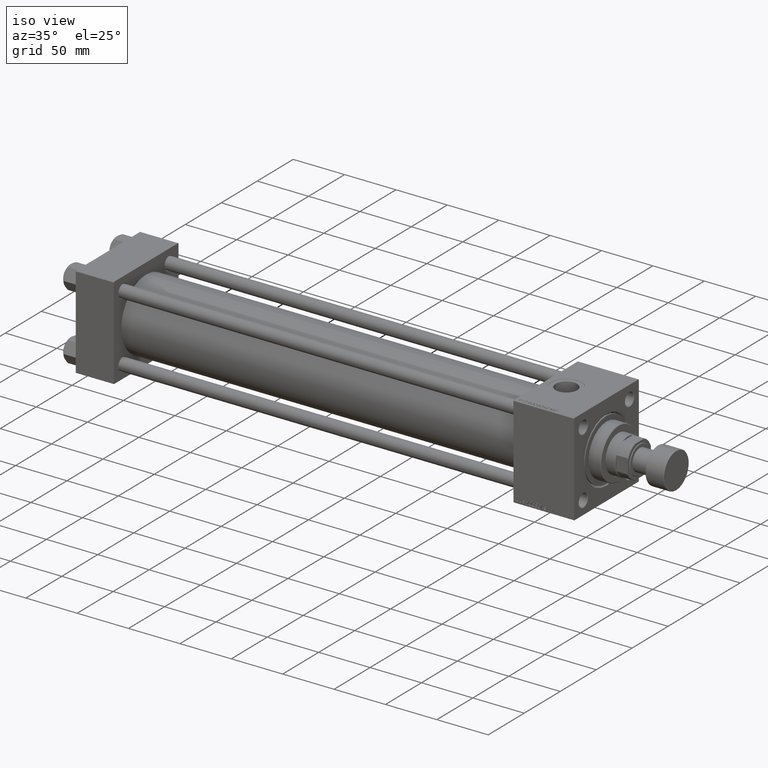
[diagram: clean part render]
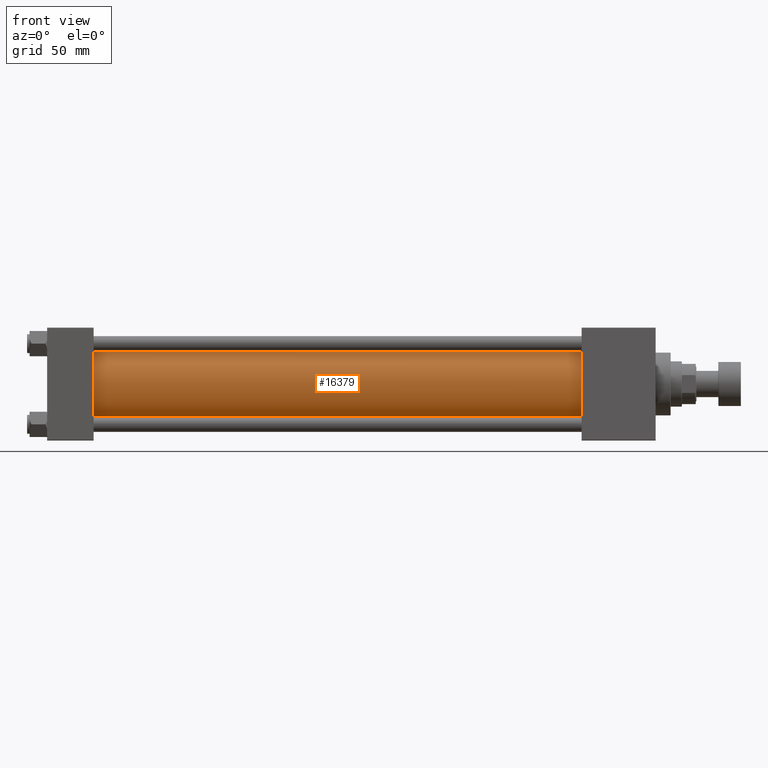
[diagram: tour spotlight — one face highlighted and labeled with its STEP entity id]
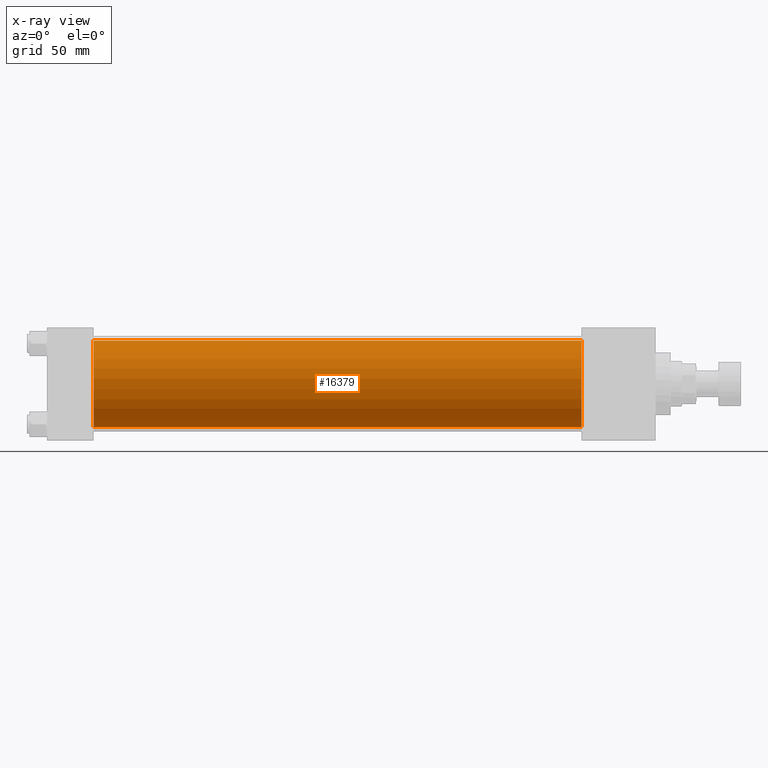
[diagram: x-ray of the same camera — body ghosted, this tour face saturated]
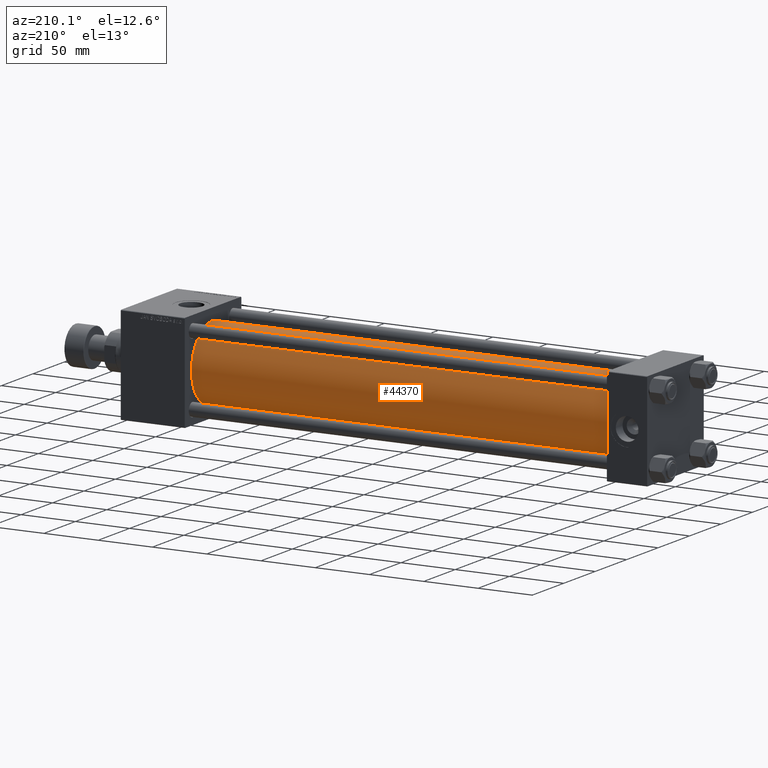
[diagram: tour spotlight — one face highlighted and labeled with its STEP entity id]
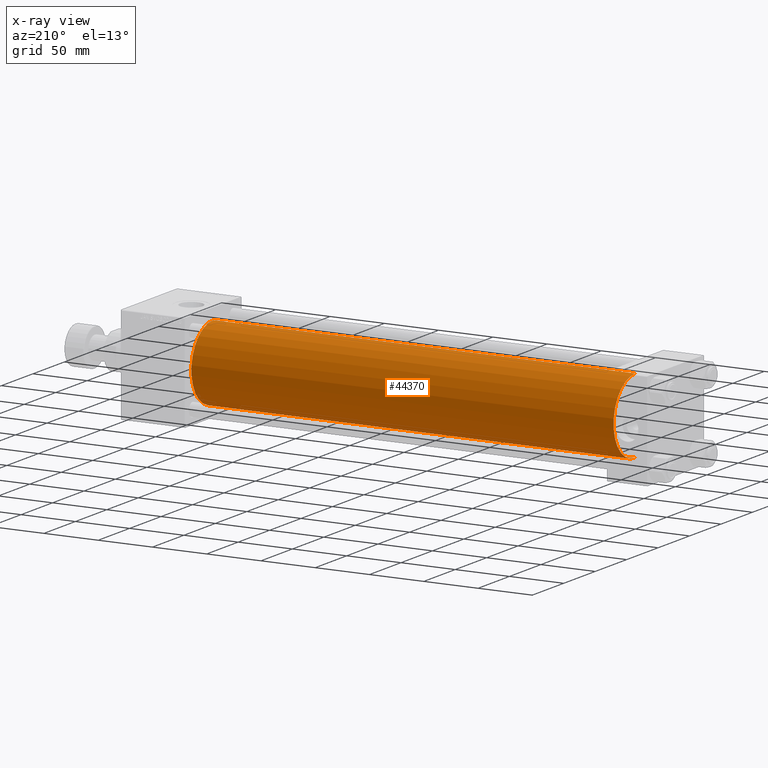
[diagram: x-ray of the same camera — body ghosted, this tour face saturated]
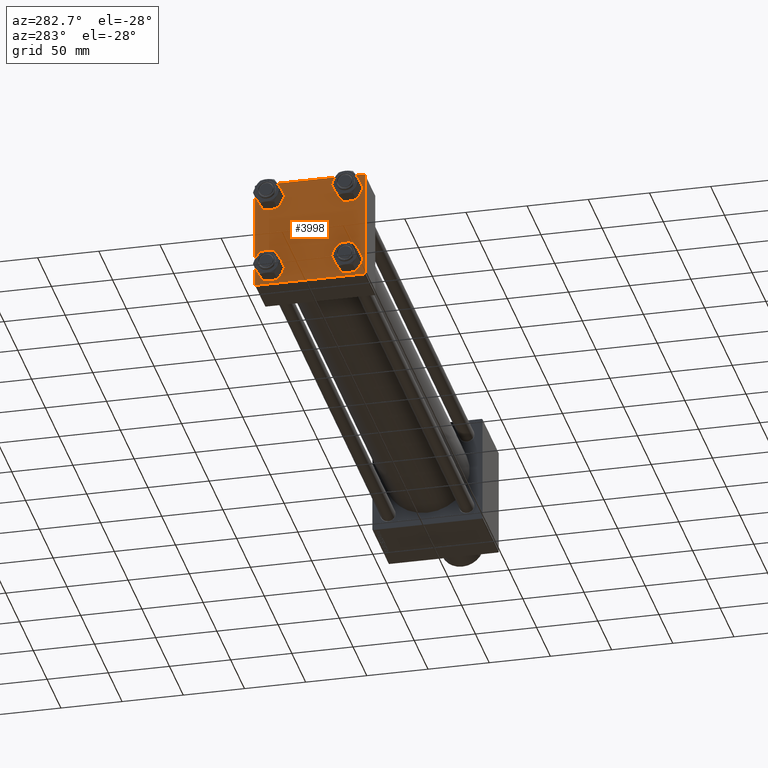
[diagram: tour spotlight — one face highlighted and labeled with its STEP entity id]
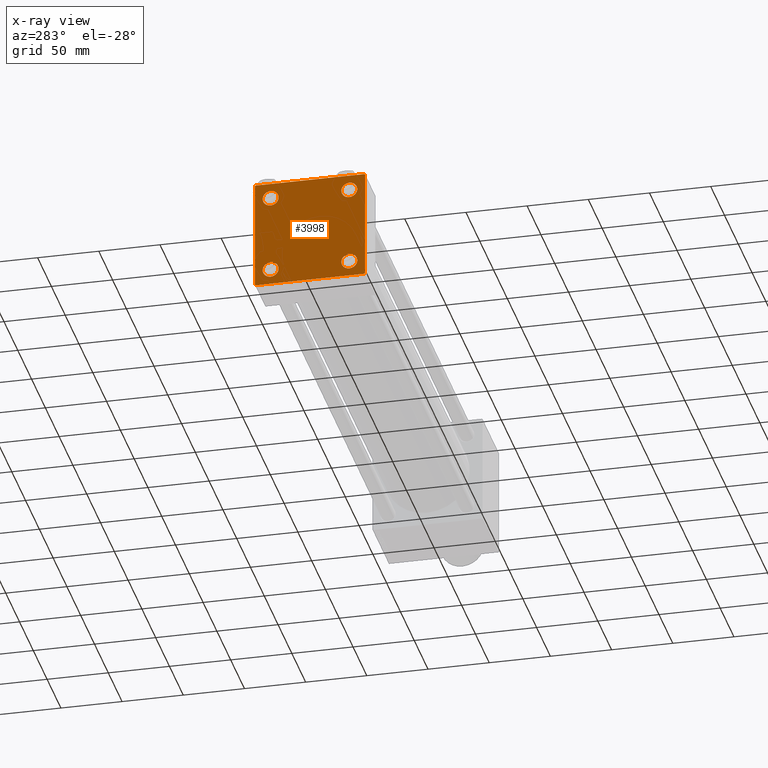
[diagram: x-ray of the same camera — body ghosted, this tour face saturated]
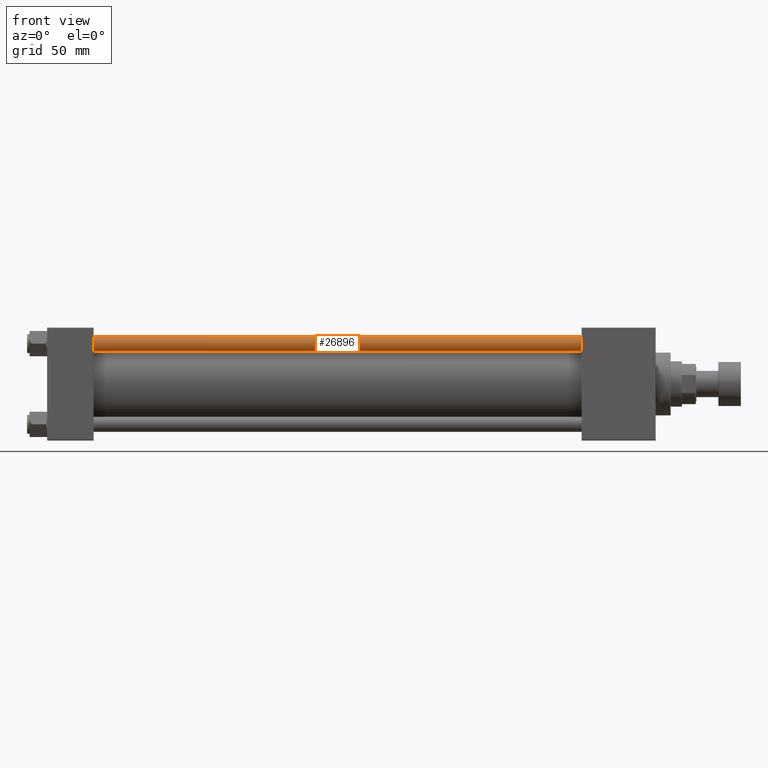
[diagram: tour spotlight — one face highlighted and labeled with its STEP entity id]
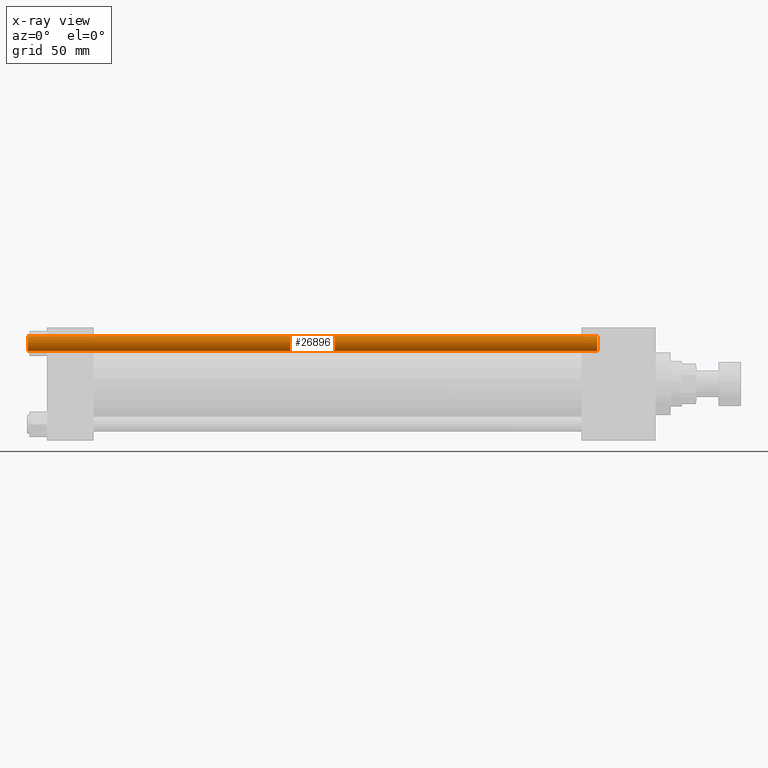
[diagram: x-ray of the same camera — body ghosted, this tour face saturated]
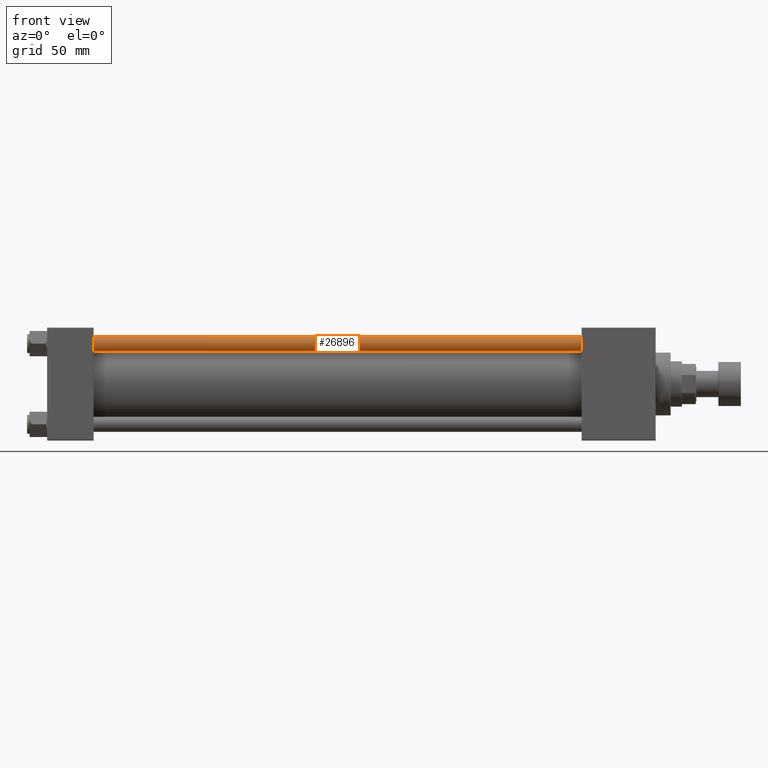
[diagram: tour spotlight — one face highlighted and labeled with its STEP entity id]
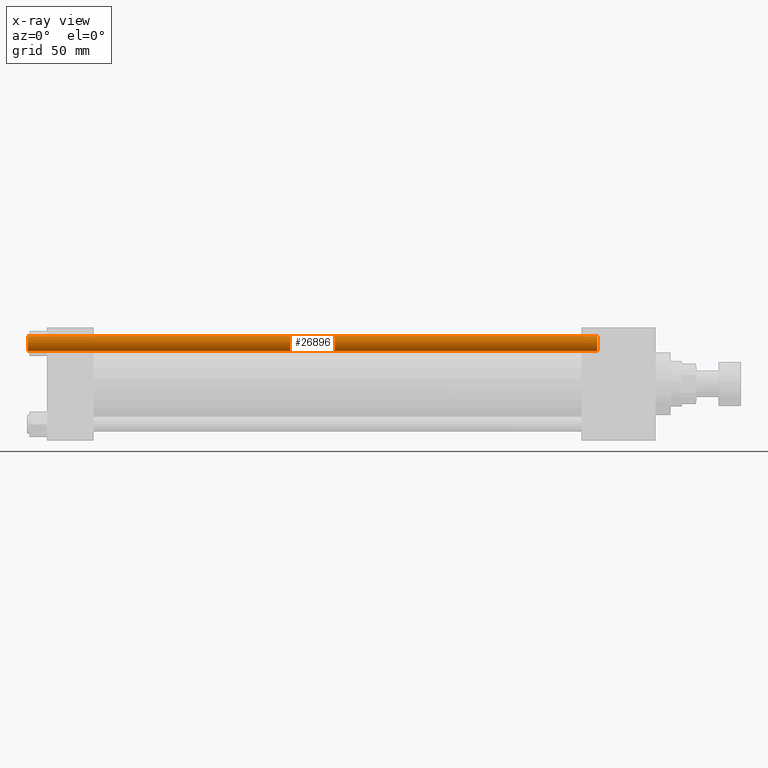
[diagram: x-ray of the same camera — body ghosted, this tour face saturated]
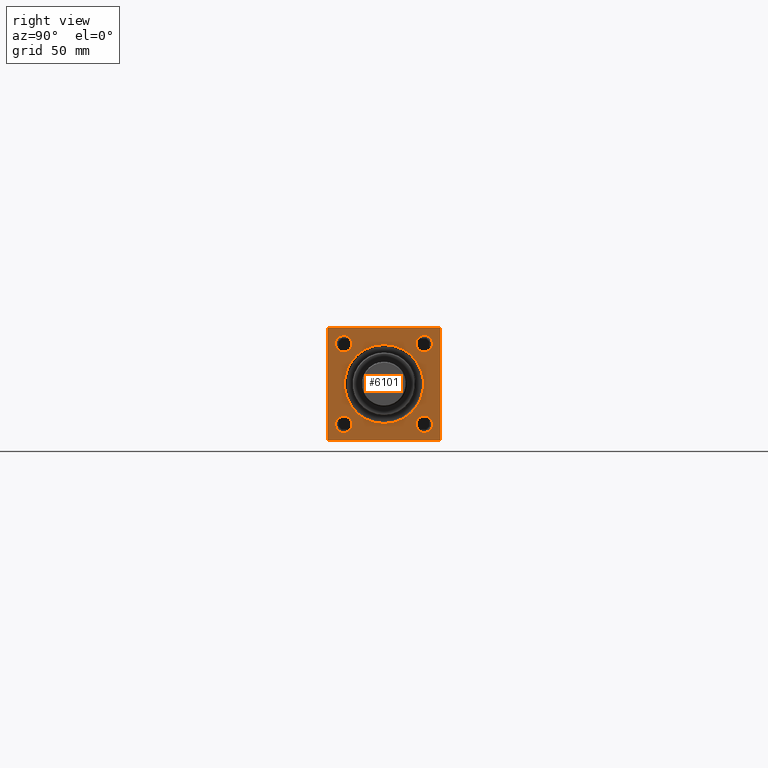
[diagram: tour spotlight — one face highlighted and labeled with its STEP entity id]
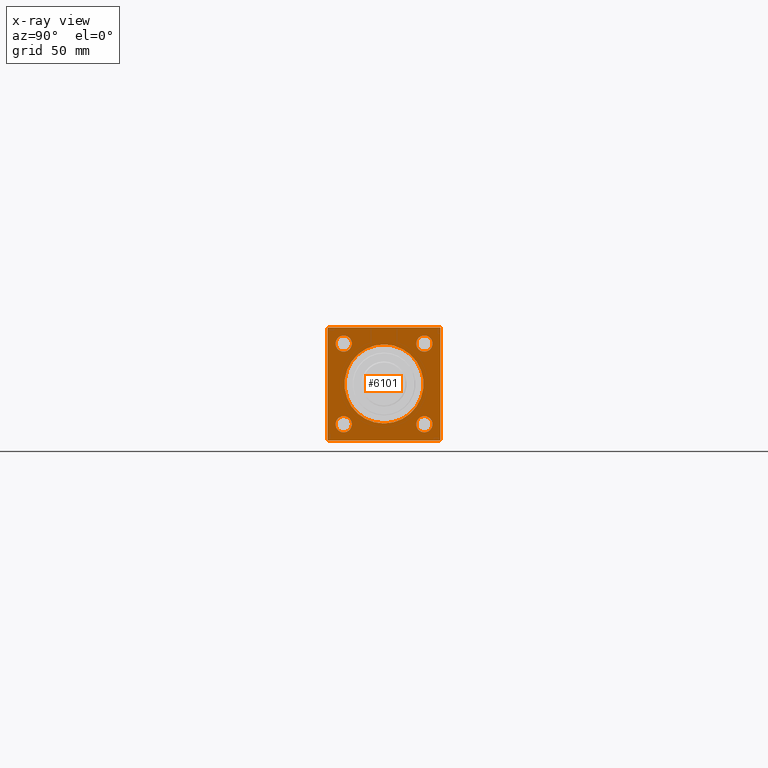
[diagram: x-ray of the same camera — body ghosted, this tour face saturated]
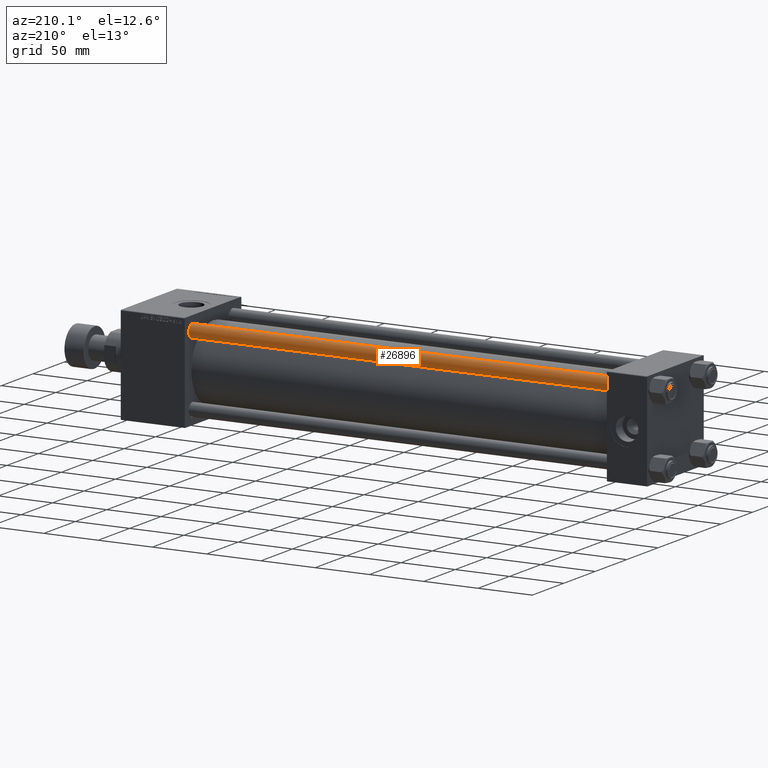
[diagram: tour spotlight — one face highlighted and labeled with its STEP entity id]
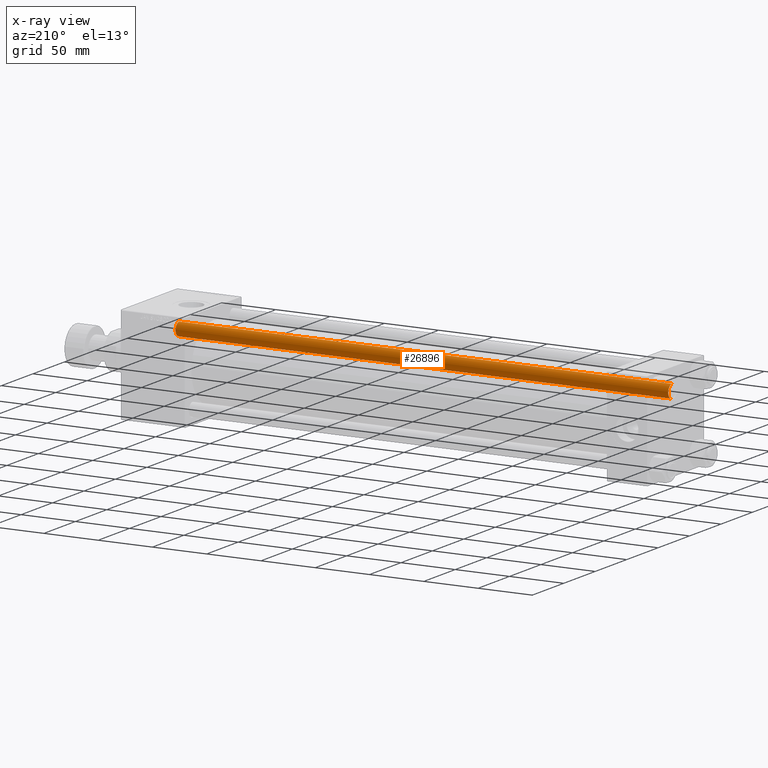
[diagram: x-ray of the same camera — body ghosted, this tour face saturated]
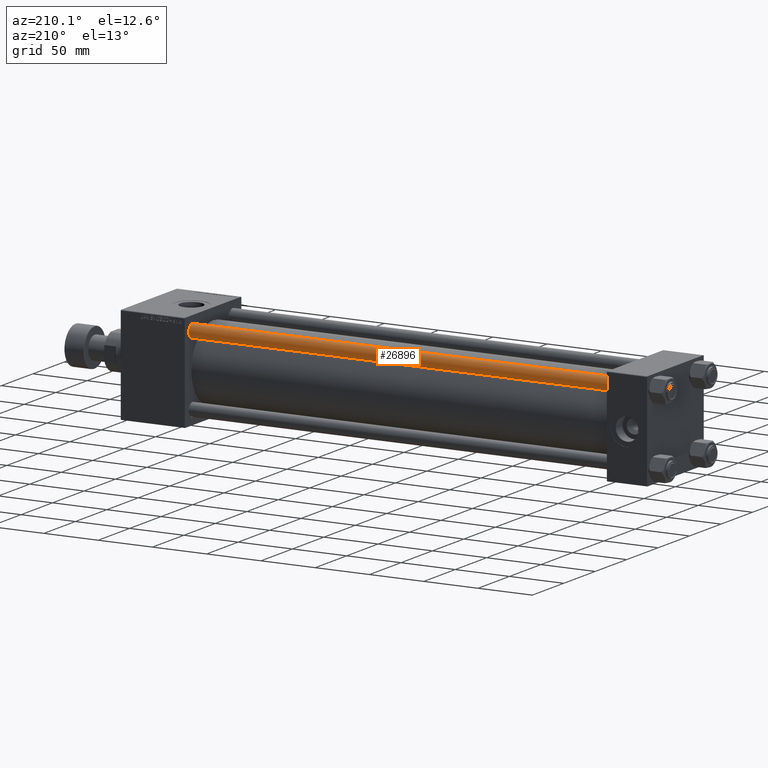
[diagram: tour spotlight — one face highlighted and labeled with its STEP entity id]
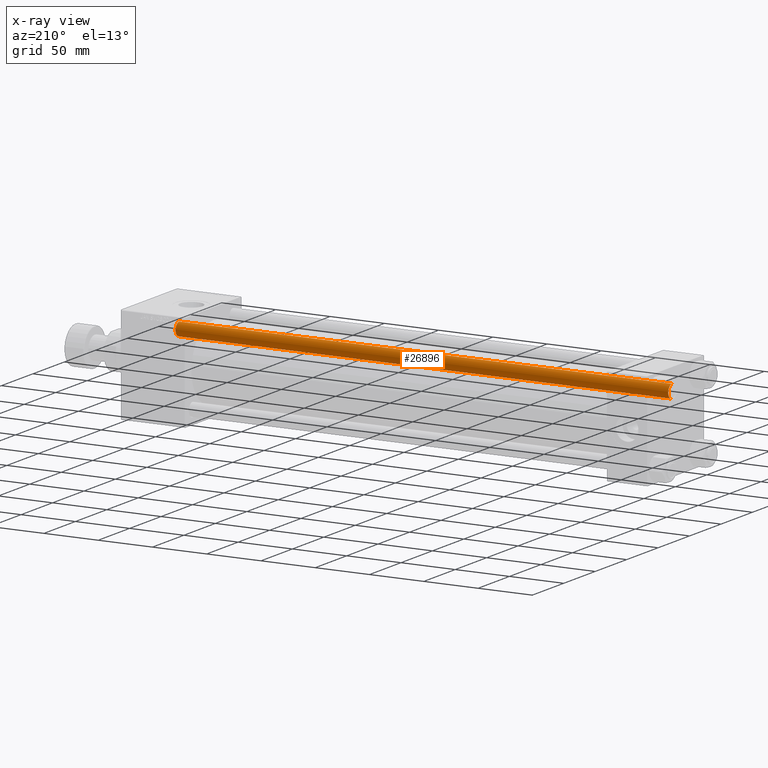
[diagram: x-ray of the same camera — body ghosted, this tour face saturated]
A machine part: a face-by-face anatomy tour. The part has 1163 B-rep faces; the first image is the clean iso view, then the 8 largest visible faces are spotlighted one at a time (largest first), each with its STEP entity span.

Face 1 — front view, entity #16379. An x-ray twin of the same camera follows (body ghosted, this face saturated) — the face is partly hidden behind the body. In plain terms, the highlighted cylindrical surface (partial cylindrical patch) has radius 34.5 mm, axis along (-1, -0, -0).
Definition (entity closure, byte-faithful):
#2036 = CIRCLE ( 'NONE', #50307, 34.50000000000000000 ) ;
#3838 = EDGE_LOOP ( 'NONE', ( #22764, #32277, #10061, #45417 ) ) ;
#4019 = LINE ( 'NONE', #11445, #33321 ) ;
#5438 = CARTESIAN_POINT ( 'NONE',  ( 426.0000000000000000, -2.602085213965210642E-15, 34.50000000000000000 ) ) ;
#9543 = CARTESIAN_POINT ( 'NONE',  ( 36.99999999999997868, 1.622946243093158675E-15, -34.50000000000000000 ) ) ;
#9668 = DIRECTION ( 'NONE',  ( 0.000000000000000000, 0.000000000000000000, 1.000000000000000000 ) ) ;
#9776 = LINE ( 'NONE', #5438, #29373 ) ;
#10061 = ORIENTED_EDGE ( 'NONE', *, *, #42014, .T. ) ;
#10932 = DIRECTION ( 'NONE',  ( -1.000000000000000000, -0.000000000000000000, -0.000000000000000000 ) ) ;
#11445 = CARTESIAN_POINT ( 'NONE',  ( 426.0000000000000000, 1.622946243093158675E-15, -34.50000000000000000 ) ) ;
#11568 = VERTEX_POINT ( 'NONE', #9543 ) ;
#12753 = EDGE_CURVE ( 'NONE', #21573, #47788, #2036, .T. ) ;
#16379 = ADVANCED_FACE ( 'NONE', ( #40903 ), #41156, .T. ) ;
#16640 = CARTESIAN_POINT ( 'NONE',  ( 426.0000000000000000, -2.602085213965210642E-15, 0.000000000000000000 ) ) ;
#16852 = EDGE_CURVE ( 'NONE', #26993, #11568, #32413, .T. ) ;
#19041 = DIRECTION ( 'NONE',  ( 0.000000000000000000, 0.000000000000000000, -1.000000000000000000 ) ) ;
#20684 = CARTESIAN_POINT ( 'NONE',  ( 426.0000000000000000, -2.602085213965210642E-15, 0.000000000000000000 ) ) ;
#21573 = VERTEX_POINT ( 'NONE', #40138 ) ;
#22613 = AXIS2_PLACEMENT_3D ( 'NONE', #20684, #36560, #9668 ) ;
#22764 = ORIENTED_EDGE ( 'NONE', *, *, #32648, .F. ) ;
#25712 = DIRECTION ( 'NONE',  ( 0.000000000000000000, 0.000000000000000000, 1.000000000000000000 ) ) ;
#26993 = VERTEX_POINT ( 'NONE', #32930 ) ;
#29373 = VECTOR ( 'NONE', #33088, 1000.000000000000000 ) ;
#30559 = DIRECTION ( 'NONE',  ( 1.000000000000000000, -0.000000000000000000, 0.000000000000000000 ) ) ;
#32277 = ORIENTED_EDGE ( 'NONE', *, *, #12753, .F. ) ;
#32413 = CIRCLE ( 'NONE', #45512, 34.50000000000000000 ) ;
#32648 = EDGE_CURVE ( 'NONE', #47788, #11568, #4019, .T. ) ;
#32930 = CARTESIAN_POINT ( 'NONE',  ( 36.99999999999997868, -2.602085213965210642E-15, 34.50000000000000000 ) ) ;
#33088 = DIRECTION ( 'NONE',  ( -1.000000000000000000, -0.000000000000000000, -0.000000000000000000 ) ) ;
#33321 = VECTOR ( 'NONE', #10932, 1000.000000000000000 ) ;
#36111 = DIRECTION ( 'NONE',  ( 1.000000000000000000, 0.000000000000000000, 0.000000000000000000 ) ) ;
#36560 = DIRECTION ( 'NONE',  ( -1.000000000000000000, -0.000000000000000000, -0.000000000000000000 ) ) ;
#40138 = CARTESIAN_POINT ( 'NONE',  ( 426.0000000000000000, -2.602085213965210642E-15, 34.50000000000000000 ) ) ;
#40903 = FACE_OUTER_BOUND ( 'NONE', #3838, .T. ) ;
#41156 = CYLINDRICAL_SURFACE ( 'NONE', #22613, 34.50000000000000000 ) ;
#42014 = EDGE_CURVE ( 'NONE', #21573, #26993, #9776, .T. ) ;
#45417 = ORIENTED_EDGE ( 'NONE', *, *, #16852, .T. ) ;
#45512 = AXIS2_PLACEMENT_3D ( 'NONE', #50049, #30559, #25712 ) ;
#46736 = CARTESIAN_POINT ( 'NONE',  ( 426.0000000000000000, 1.622946243093158675E-15, -34.50000000000000000 ) ) ;
#47788 = VERTEX_POINT ( 'NONE', #46736 ) ;
#50049 = CARTESIAN_POINT ( 'NONE',  ( 36.99999999999997868, -2.602085213965210642E-15, 0.000000000000000000 ) ) ;
#50307 = AXIS2_PLACEMENT_3D ( 'NONE', #16640, #36111, #19041 ) ;

Face 2 — auxiliary view, entity #44370. An x-ray twin of the same camera follows (body ghosted, this face saturated) — the face is partly hidden behind the body. In plain terms, the highlighted cylindrical surface (partial cylindrical patch) has radius 34.5 mm, axis along (-1, -0, -0).
Definition (entity closure, byte-faithful):
#1554 = ORIENTED_EDGE ( 'NONE', *, *, #42014, .F. ) ;
#3348 = CARTESIAN_POINT ( 'NONE',  ( 36.99999999999997868, -2.602085213965210642E-15, 0.000000000000000000 ) ) ;
#4019 = LINE ( 'NONE', #11445, #33321 ) ;
#5438 = CARTESIAN_POINT ( 'NONE',  ( 426.0000000000000000, -2.602085213965210642E-15, 34.50000000000000000 ) ) ;
#7443 = DIRECTION ( 'NONE',  ( 0.000000000000000000, 0.000000000000000000, 1.000000000000000000 ) ) ;
#9543 = CARTESIAN_POINT ( 'NONE',  ( 36.99999999999997868, 1.622946243093158675E-15, -34.50000000000000000 ) ) ;
#9776 = LINE ( 'NONE', #5438, #29373 ) ;
#10932 = DIRECTION ( 'NONE',  ( -1.000000000000000000, -0.000000000000000000, -0.000000000000000000 ) ) ;
#11445 = CARTESIAN_POINT ( 'NONE',  ( 426.0000000000000000, 1.622946243093158675E-15, -34.50000000000000000 ) ) ;
#11485 = CARTESIAN_POINT ( 'NONE',  ( 426.0000000000000000, -2.602085213965210642E-15, 0.000000000000000000 ) ) ;
#11568 = VERTEX_POINT ( 'NONE', #9543 ) ;
#12361 = DIRECTION ( 'NONE',  ( 0.000000000000000000, 0.000000000000000000, 1.000000000000000000 ) ) ;
#15575 = AXIS2_PLACEMENT_3D ( 'NONE', #16450, #31821, #12361 ) ;
#15832 = DIRECTION ( 'NONE',  ( 0.000000000000000000, 0.000000000000000000, -1.000000000000000000 ) ) ;
#16450 = CARTESIAN_POINT ( 'NONE',  ( 426.0000000000000000, -2.602085213965210642E-15, 0.000000000000000000 ) ) ;
#21359 = CIRCLE ( 'NONE', #38535, 34.50000000000000000 ) ;
#21573 = VERTEX_POINT ( 'NONE', #40138 ) ;
#23881 = CYLINDRICAL_SURFACE ( 'NONE', #15575, 34.50000000000000000 ) ;
#25182 = EDGE_CURVE ( 'NONE', #11568, #26993, #25815, .T. ) ;
#25815 = CIRCLE ( 'NONE', #31564, 34.50000000000000000 ) ;
#26993 = VERTEX_POINT ( 'NONE', #32930 ) ;
#28498 = ORIENTED_EDGE ( 'NONE', *, *, #44837, .F. ) ;
#28755 = EDGE_LOOP ( 'NONE', ( #28498, #43012, #45484, #1554 ) ) ;
#29373 = VECTOR ( 'NONE', #33088, 1000.000000000000000 ) ;
#31455 = DIRECTION ( 'NONE',  ( 1.000000000000000000, 0.000000000000000000, 0.000000000000000000 ) ) ;
#31564 = AXIS2_PLACEMENT_3D ( 'NONE', #3348, #38431, #7443 ) ;
#31821 = DIRECTION ( 'NONE',  ( -1.000000000000000000, -0.000000000000000000, -0.000000000000000000 ) ) ;
#32648 = EDGE_CURVE ( 'NONE', #47788, #11568, #4019, .T. ) ;
#32930 = CARTESIAN_POINT ( 'NONE',  ( 36.99999999999997868, -2.602085213965210642E-15, 34.50000000000000000 ) ) ;
#33088 = DIRECTION ( 'NONE',  ( -1.000000000000000000, -0.000000000000000000, -0.000000000000000000 ) ) ;
#33321 = VECTOR ( 'NONE', #10932, 1000.000000000000000 ) ;
#35917 = FACE_OUTER_BOUND ( 'NONE', #28755, .T. ) ;
#38431 = DIRECTION ( 'NONE',  ( 1.000000000000000000, -0.000000000000000000, 0.000000000000000000 ) ) ;
#38535 = AXIS2_PLACEMENT_3D ( 'NONE', #11485, #31455, #15832 ) ;
#40138 = CARTESIAN_POINT ( 'NONE',  ( 426.0000000000000000, -2.602085213965210642E-15, 34.50000000000000000 ) ) ;
#42014 = EDGE_CURVE ( 'NONE', #21573, #26993, #9776, .T. ) ;
#43012 = ORIENTED_EDGE ( 'NONE', *, *, #32648, .T. ) ;
#44370 = ADVANCED_FACE ( 'NONE', ( #35917 ), #23881, .T. ) ;
#44837 = EDGE_CURVE ( 'NONE', #47788, #21573, #21359, .T. ) ;
#45484 = ORIENTED_EDGE ( 'NONE', *, *, #25182, .T. ) ;
#46736 = CARTESIAN_POINT ( 'NONE',  ( 426.0000000000000000, 1.622946243093158675E-15, -34.50000000000000000 ) ) ;
#47788 = VERTEX_POINT ( 'NONE', #46736 ) ;

Face 3 — auxiliary view, entity #3998. An x-ray twin of the same camera follows (body ghosted, this face saturated) — the face is partly hidden behind the body. In plain terms, the highlighted planar face has unit normal (-1, 0, 0).
Definition (entity closure, byte-faithful):
#214 = DIRECTION ( 'NONE',  ( 1.000000000000000000, -0.000000000000000000, 0.000000000000000000 ) ) ;
#255 = EDGE_CURVE ( 'NONE', #8393, #20391, #40821, .T. ) ;
#831 = CARTESIAN_POINT ( 'NONE',  ( 0.000000000000000000, -44.49999999999997158, 44.99999999999998579 ) ) ;
#1367 = CARTESIAN_POINT ( 'NONE',  ( 0.000000000000000000, 32.14999999999999147, -38.65000000000001990 ) ) ;
#1424 = CARTESIAN_POINT ( 'NONE',  ( 0.000000000000000000, -32.14999999999997726, -38.64999999999998437 ) ) ;
#1883 = FACE_BOUND ( 'NONE', #5798, .T. ) ;
#2330 = DIRECTION ( 'NONE',  ( 0.000000000000000000, -1.000000000000000000, -7.709882115452476934E-17 ) ) ;
#2645 = CARTESIAN_POINT ( 'NONE',  ( 0.000000000000000000, 0.000000000000000000, 0.000000000000000000 ) ) ;
#3328 = EDGE_CURVE ( 'NONE', #40035, #9193, #49295, .T. ) ;
#3541 = CIRCLE ( 'NONE', #40350, 6.499999999999977796 ) ;
#3644 = ORIENTED_EDGE ( 'NONE', *, *, #42162, .T. ) ;
#3848 = CARTESIAN_POINT ( 'NONE',  ( 0.000000000000000000, 44.74999999999999289, -44.74999999999999289 ) ) ;
#3998 = ADVANCED_FACE ( 'NONE', ( #29522, #18006, #25929, #1883, #49012 ), #29014, .T. ) ;
#4077 = CARTESIAN_POINT ( 'NONE',  ( 0.000000000000000000, -45.00000000000000000, 44.49999999999998579 ) ) ;
#4105 = AXIS2_PLACEMENT_3D ( 'NONE', #32591, #12104, #12354 ) ;
#4538 = DIRECTION ( 'NONE',  ( 0.000000000000000000, 0.000000000000000000, 1.000000000000000000 ) ) ;
#4547 = CARTESIAN_POINT ( 'NONE',  ( 0.000000000000000000, -45.00000000000000000, 44.99999999999998579 ) ) ;
#4636 = EDGE_CURVE ( 'NONE', #49964, #22693, #34508, .T. ) ;
#5109 = EDGE_CURVE ( 'NONE', #14866, #5452, #3541, .T. ) ;
#5452 = VERTEX_POINT ( 'NONE', #32676 ) ;
#5564 = CARTESIAN_POINT ( 'NONE',  ( 0.000000000000000000, -32.14999999999997726, 32.15000000000000568 ) ) ;
#5798 = EDGE_LOOP ( 'NONE', ( #12030, #45898 ) ) ;
#5857 = DIRECTION ( 'NONE',  ( 0.000000000000000000, 0.000000000000000000, 1.000000000000000000 ) ) ;
#6181 = VERTEX_POINT ( 'NONE', #44083 ) ;
#6879 = LINE ( 'NONE', #34275, #36743 ) ;
#7137 = DIRECTION ( 'NONE',  ( 0.000000000000000000, 0.7071067811865574537, -0.7071067811865376918 ) ) ;
#7281 = LINE ( 'NONE', #33926, #12810 ) ;
#7785 = CARTESIAN_POINT ( 'NONE',  ( 0.000000000000000000, -44.49999999999994316, -45.00000000000000000 ) ) ;
#8393 = VERTEX_POINT ( 'NONE', #7785 ) ;
#8398 = DIRECTION ( 'NONE',  ( 0.000000000000000000, 0.000000000000000000, 1.000000000000000000 ) ) ;
#8428 = VECTOR ( 'NONE', #44476, 1000.000000000000000 ) ;
#8619 = VERTEX_POINT ( 'NONE', #18239 ) ;
#8653 = CARTESIAN_POINT ( 'NONE',  ( 0.000000000000000000, -32.14999999999997726, 32.15000000000000568 ) ) ;
#9193 = VERTEX_POINT ( 'NONE', #1424 ) ;
#9455 = CIRCLE ( 'NONE', #38067, 6.500000000000019540 ) ;
#9575 = DIRECTION ( 'NONE',  ( -1.000000000000000000, 0.000000000000000000, -0.000000000000000000 ) ) ;
#9670 = EDGE_CURVE ( 'NONE', #27321, #22693, #30260, .T. ) ;
#9683 = ORIENTED_EDGE ( 'NONE', *, *, #35758, .T. ) ;
#9732 = ORIENTED_EDGE ( 'NONE', *, *, #21610, .F. ) ;
#10636 = EDGE_LOOP ( 'NONE', ( #3644, #11522 ) ) ;
#11522 = ORIENTED_EDGE ( 'NONE', *, *, #5109, .T. ) ;
#11996 = VECTOR ( 'NONE', #39181, 1000.000000000000114 ) ;
#12030 = ORIENTED_EDGE ( 'NONE', *, *, #24329, .T. ) ;
#12104 = DIRECTION ( 'NONE',  ( 1.000000000000000000, -0.000000000000000000, 0.000000000000000000 ) ) ;
#12275 = LINE ( 'NONE', #3848, #11996 ) ;
#12354 = DIRECTION ( 'NONE',  ( 0.000000000000000000, 0.000000000000000000, 1.000000000000000000 ) ) ;
#12810 = VECTOR ( 'NONE', #45711, 1000.000000000000000 ) ;
#13011 = ORIENTED_EDGE ( 'NONE', *, *, #17539, .T. ) ;
#13755 = DIRECTION ( 'NONE',  ( 0.000000000000000000, 0.000000000000000000, 1.000000000000000000 ) ) ;
#13788 = CARTESIAN_POINT ( 'NONE',  ( 0.000000000000000000, 32.14999999999999147, -32.14999999999999858 ) ) ;
#14046 = DIRECTION ( 'NONE',  ( 1.000000000000000000, -0.000000000000000000, 0.000000000000000000 ) ) ;
#14866 = VERTEX_POINT ( 'NONE', #39459 ) ;
#15110 = VERTEX_POINT ( 'NONE', #35001 ) ;
#15297 = EDGE_LOOP ( 'NONE', ( #13011, #27853, #9683, #21978, #9732, #44077, #38867, #40992 ) ) ;
#15809 = DIRECTION ( 'NONE',  ( 0.000000000000000000, 0.000000000000000000, 1.000000000000000000 ) ) ;
#16341 = DIRECTION ( 'NONE',  ( 1.000000000000000000, -0.000000000000000000, 0.000000000000000000 ) ) ;
#17079 = VECTOR ( 'NONE', #2330, 1000.000000000000000 ) ;
#17512 = CARTESIAN_POINT ( 'NONE',  ( 0.000000000000000000, 32.14999999999999147, -25.64999999999997726 ) ) ;
#17539 = EDGE_CURVE ( 'NONE', #18013, #15110, #7281, .T. ) ;
#18006 = FACE_BOUND ( 'NONE', #24477, .T. ) ;
#18013 = VERTEX_POINT ( 'NONE', #31771 ) ;
#18017 = DIRECTION ( 'NONE',  ( 0.000000000000000000, -0.7071067811865672237, 0.7071067811865279218 ) ) ;
#18157 = CARTESIAN_POINT ( 'NONE',  ( 0.000000000000000000, -32.14999999999997726, -25.65000000000002700 ) ) ;
#18239 = CARTESIAN_POINT ( 'NONE',  ( 0.000000000000000000, 44.50000000000000000, -44.99999999999999289 ) ) ;
#18922 = VERTEX_POINT ( 'NONE', #1367 ) ;
#20361 = EDGE_CURVE ( 'NONE', #18922, #26866, #35474, .T. ) ;
#20391 = VERTEX_POINT ( 'NONE', #44782 ) ;
#20397 = AXIS2_PLACEMENT_3D ( 'NONE', #5564, #31937, #4538 ) ;
#20418 = LINE ( 'NONE', #4547, #24897 ) ;
#20588 = VERTEX_POINT ( 'NONE', #34257 ) ;
#20680 = CARTESIAN_POINT ( 'NONE',  ( 0.000000000000000000, 32.14999999999999147, -32.14999999999999858 ) ) ;
#20702 = CARTESIAN_POINT ( 'NONE',  ( 0.000000000000000000, -32.14999999999997726, -32.15000000000000568 ) ) ;
#20934 = DIRECTION ( 'NONE',  ( 1.000000000000000000, -0.000000000000000000, 0.000000000000000000 ) ) ;
#21610 = EDGE_CURVE ( 'NONE', #27321, #20391, #20418, .T. ) ;
#21721 = CARTESIAN_POINT ( 'NONE',  ( 0.000000000000000000, -32.14999999999997726, -32.15000000000000568 ) ) ;
#21869 = AXIS2_PLACEMENT_3D ( 'NONE', #21721, #33757, #5857 ) ;
#21978 = ORIENTED_EDGE ( 'NONE', *, *, #255, .T. ) ;
#22693 = VERTEX_POINT ( 'NONE', #831 ) ;
#24329 = EDGE_CURVE ( 'NONE', #6181, #20588, #9455, .T. ) ;
#24477 = EDGE_LOOP ( 'NONE', ( #35574, #37337 ) ) ;
#24897 = VECTOR ( 'NONE', #32460, 1000.000000000000000 ) ;
#25929 = FACE_BOUND ( 'NONE', #46874, .T. ) ;
#26164 = DIRECTION ( 'NONE',  ( -0.000000000000000000, 0.7071067811865474617, 0.7071067811865474617 ) ) ;
#26866 = VERTEX_POINT ( 'NONE', #17512 ) ;
#26887 = AXIS2_PLACEMENT_3D ( 'NONE', #20680, #20934, #13755 ) ;
#27281 = VECTOR ( 'NONE', #26164, 1000.000000000000114 ) ;
#27321 = VERTEX_POINT ( 'NONE', #4077 ) ;
#27853 = ORIENTED_EDGE ( 'NONE', *, *, #29680, .T. ) ;
#28877 = DIRECTION ( 'NONE',  ( 0.000000000000000000, 0.000000000000000000, 1.000000000000000000 ) ) ;
#29014 = PLANE ( 'NONE',  #48534 ) ;
#29522 = FACE_BOUND ( 'NONE', #10636, .T. ) ;
#29680 = EDGE_CURVE ( 'NONE', #15110, #8619, #12275, .T. ) ;
#29787 = CARTESIAN_POINT ( 'NONE',  ( 0.000000000000000000, -44.74999999999873523, -44.75000000000122924 ) ) ;
#30048 = CIRCLE ( 'NONE', #21869, 6.499999999999977796 ) ;
#30260 = LINE ( 'NONE', #42060, #27281 ) ;
#31035 = CIRCLE ( 'NONE', #20397, 6.499999999999977796 ) ;
#31180 = CARTESIAN_POINT ( 'NONE',  ( 0.000000000000000000, 32.14999999999999147, 32.14999999999999858 ) ) ;
#31771 = CARTESIAN_POINT ( 'NONE',  ( 0.000000000000000000, 45.00000000000000000, 44.49999999999999289 ) ) ;
#31937 = DIRECTION ( 'NONE',  ( 1.000000000000000000, -0.000000000000000000, 0.000000000000000000 ) ) ;
#32460 = DIRECTION ( 'NONE',  ( 0.000000000000000000, 0.000000000000000000, -1.000000000000000000 ) ) ;
#32538 = EDGE_CURVE ( 'NONE', #9193, #40035, #30048, .T. ) ;
#32591 = CARTESIAN_POINT ( 'NONE',  ( 0.000000000000000000, 32.14999999999999147, 32.14999999999999858 ) ) ;
#32676 = CARTESIAN_POINT ( 'NONE',  ( 0.000000000000000000, -32.14999999999997726, 38.64999999999999147 ) ) ;
#32844 = VECTOR ( 'NONE', #18017, 1000.000000000000000 ) ;
#33757 = DIRECTION ( 'NONE',  ( 1.000000000000000000, -0.000000000000000000, 0.000000000000000000 ) ) ;
#33926 = CARTESIAN_POINT ( 'NONE',  ( 0.000000000000000000, 45.00000000000000000, 45.00000000000000711 ) ) ;
#34257 = CARTESIAN_POINT ( 'NONE',  ( 0.000000000000000000, 32.14999999999999147, 25.64999999999997726 ) ) ;
#34275 = CARTESIAN_POINT ( 'NONE',  ( 0.000000000000000000, 44.74999999999936762, 44.75000000000061107 ) ) ;
#34307 = LINE ( 'NONE', #49944, #17079 ) ;
#34508 = LINE ( 'NONE', #50145, #8428 ) ;
#35001 = CARTESIAN_POINT ( 'NONE',  ( 0.000000000000000000, 45.00000000000000000, -44.49999999999996447 ) ) ;
#35474 = CIRCLE ( 'NONE', #50224, 6.500000000000019540 ) ;
#35574 = ORIENTED_EDGE ( 'NONE', *, *, #3328, .T. ) ;
#35758 = EDGE_CURVE ( 'NONE', #8619, #8393, #34307, .T. ) ;
#36743 = VECTOR ( 'NONE', #7137, 999.9999999999998863 ) ;
#37337 = ORIENTED_EDGE ( 'NONE', *, *, #32538, .T. ) ;
#37612 = CARTESIAN_POINT ( 'NONE',  ( 0.000000000000000000, 44.49999999999997158, 45.00000000000000711 ) ) ;
#38067 = AXIS2_PLACEMENT_3D ( 'NONE', #31180, #49469, #15809 ) ;
#38867 = ORIENTED_EDGE ( 'NONE', *, *, #4636, .F. ) ;
#39155 = ORIENTED_EDGE ( 'NONE', *, *, #40258, .T. ) ;
#39181 = DIRECTION ( 'NONE',  ( -0.000000000000000000, -0.7071067811865474617, -0.7071067811865474617 ) ) ;
#39459 = CARTESIAN_POINT ( 'NONE',  ( 0.000000000000000000, -32.14999999999997726, 25.65000000000002700 ) ) ;
#39514 = EDGE_CURVE ( 'NONE', #20588, #6181, #43245, .T. ) ;
#40035 = VERTEX_POINT ( 'NONE', #18157 ) ;
#40049 = EDGE_CURVE ( 'NONE', #49964, #18013, #6879, .T. ) ;
#40258 = EDGE_CURVE ( 'NONE', #26866, #18922, #49011, .T. ) ;
#40350 = AXIS2_PLACEMENT_3D ( 'NONE', #8653, #214, #8398 ) ;
#40685 = DIRECTION ( 'NONE',  ( 0.000000000000000000, 0.000000000000000000, 1.000000000000000000 ) ) ;
#40821 = LINE ( 'NONE', #29787, #32844 ) ;
#40992 = ORIENTED_EDGE ( 'NONE', *, *, #40049, .T. ) ;
#41565 = DIRECTION ( 'NONE',  ( -0.000000000000000000, 0.000000000000000000, 1.000000000000000000 ) ) ;
#41930 = AXIS2_PLACEMENT_3D ( 'NONE', #20702, #16341, #28877 ) ;
#42060 = CARTESIAN_POINT ( 'NONE',  ( -0.000000000000000000, -44.74999999999999289, 44.74999999999999289 ) ) ;
#42162 = EDGE_CURVE ( 'NONE', #5452, #14866, #31035, .T. ) ;
#43245 = CIRCLE ( 'NONE', #4105, 6.500000000000019540 ) ;
#44077 = ORIENTED_EDGE ( 'NONE', *, *, #9670, .T. ) ;
#44083 = CARTESIAN_POINT ( 'NONE',  ( 0.000000000000000000, 32.14999999999999147, 38.65000000000001990 ) ) ;
#44476 = DIRECTION ( 'NONE',  ( 0.000000000000000000, -1.000000000000000000, -2.312964634635742957E-16 ) ) ;
#44782 = CARTESIAN_POINT ( 'NONE',  ( 0.000000000000000000, -45.00000000000000000, -44.49999999999997158 ) ) ;
#45711 = DIRECTION ( 'NONE',  ( 0.000000000000000000, 0.000000000000000000, -1.000000000000000000 ) ) ;
#45898 = ORIENTED_EDGE ( 'NONE', *, *, #39514, .T. ) ;
#46874 = EDGE_LOOP ( 'NONE', ( #39155, #49208 ) ) ;
#48534 = AXIS2_PLACEMENT_3D ( 'NONE', #2645, #9575, #41565 ) ;
#49011 = CIRCLE ( 'NONE', #26887, 6.500000000000019540 ) ;
#49012 = FACE_OUTER_BOUND ( 'NONE', #15297, .T. ) ;
#49208 = ORIENTED_EDGE ( 'NONE', *, *, #20361, .T. ) ;
#49295 = CIRCLE ( 'NONE', #41930, 6.499999999999977796 ) ;
#49469 = DIRECTION ( 'NONE',  ( 1.000000000000000000, -0.000000000000000000, 0.000000000000000000 ) ) ;
#49944 = CARTESIAN_POINT ( 'NONE',  ( 0.000000000000000000, 45.00000000000000000, -44.99999999999999289 ) ) ;
#49964 = VERTEX_POINT ( 'NONE', #37612 ) ;
#50145 = CARTESIAN_POINT ( 'NONE',  ( 0.000000000000000000, 45.00000000000000000, 45.00000000000000711 ) ) ;
#50224 = AXIS2_PLACEMENT_3D ( 'NONE', #13788, #14046, #40685 ) ;

Face 4 — front view, entity #26896. An x-ray twin of the same camera follows (body ghosted, this face saturated) — the face is partly hidden behind the body. In plain terms, the highlighted cylindrical surface (edge-blend (fillet) strip) has radius 6 mm, axis along (-1, 0, -0).
Definition (entity closure, byte-faithful):
#7627 = ORIENTED_EDGE ( 'NONE', *, *, #7831, .T. ) ;
#7831 = EDGE_CURVE ( 'NONE', #43445, #44910, #46876, .T. ) ;
#7967 = LINE ( 'NONE', #46908, #24584 ) ;
#10825 = ORIENTED_EDGE ( 'NONE', *, *, #31349, .F. ) ;
#10974 = DIRECTION ( 'NONE',  ( 1.000000000000000000, 0.000000000000000000, 0.000000000000000000 ) ) ;
#13945 = CARTESIAN_POINT ( 'NONE',  ( -6.000000000000000888, 0.000000000000000000, 454.5000000000002842 ) ) ;
#14534 = DIRECTION ( 'NONE',  ( -0.000000000000000000, -0.000000000000000000, -1.000000000000000000 ) ) ;
#15871 = EDGE_LOOP ( 'NONE', ( #7627, #28757, #49127, #10825 ) ) ;
#17421 = LINE ( 'NONE', #33556, #36567 ) ;
#18863 = FACE_OUTER_BOUND ( 'NONE', #15871, .T. ) ;
#19491 = DIRECTION ( 'NONE',  ( -0.000000000000000000, -0.000000000000000000, -1.000000000000000000 ) ) ;
#20037 = AXIS2_PLACEMENT_3D ( 'NONE', #46027, #14534, #50382 ) ;
#20787 = CIRCLE ( 'NONE', #49419, 6.000000000000000888 ) ;
#21014 = EDGE_CURVE ( 'NONE', #45587, #46993, #20787, .T. ) ;
#24137 = CARTESIAN_POINT ( 'NONE',  ( -6.000000000000000888, 0.000000000000000000, 0.5000000000002224887 ) ) ;
#24584 = VECTOR ( 'NONE', #19491, 1000.000000000000000 ) ;
#26896 = ADVANCED_FACE ( 'NONE', ( #18863 ), #30382, .T. ) ;
#27666 = CARTESIAN_POINT ( 'NONE',  ( 6.000000000000000888, 7.347880794884119736E-16, 0.5000000000002224887 ) ) ;
#28099 = CARTESIAN_POINT ( 'NONE',  ( 6.000000000000000888, 7.347880794884119736E-16, 454.5000000000002842 ) ) ;
#28757 = ORIENTED_EDGE ( 'NONE', *, *, #45537, .T. ) ;
#30382 = CYLINDRICAL_SURFACE ( 'NONE', #20037, 6.000000000000000888 ) ;
#31349 = EDGE_CURVE ( 'NONE', #43445, #46993, #17421, .T. ) ;
#32895 = DIRECTION ( 'NONE',  ( -0.000000000000000000, -0.000000000000000000, 1.000000000000000000 ) ) ;
#33556 = CARTESIAN_POINT ( 'NONE',  ( -6.000000000000000888, 0.000000000000000000, 455.0000000000000000 ) ) ;
#36567 = VECTOR ( 'NONE', #44832, 1000.000000000000000 ) ;
#42768 = AXIS2_PLACEMENT_3D ( 'NONE', #46332, #49173, #10974 ) ;
#43445 = VERTEX_POINT ( 'NONE', #13945 ) ;
#44165 = CARTESIAN_POINT ( 'NONE',  ( 0.000000000000000000, 0.000000000000000000, 0.5000000000002224887 ) ) ;
#44832 = DIRECTION ( 'NONE',  ( -0.000000000000000000, -0.000000000000000000, -1.000000000000000000 ) ) ;
#44910 = VERTEX_POINT ( 'NONE', #28099 ) ;
#45537 = EDGE_CURVE ( 'NONE', #44910, #45587, #7967, .T. ) ;
#45587 = VERTEX_POINT ( 'NONE', #27666 ) ;
#46027 = CARTESIAN_POINT ( 'NONE',  ( 0.000000000000000000, 0.000000000000000000, 455.0000000000000000 ) ) ;
#46332 = CARTESIAN_POINT ( 'NONE',  ( 0.000000000000000000, 0.000000000000000000, 454.5000000000002842 ) ) ;
#46876 = CIRCLE ( 'NONE', #42768, 6.000000000000000888 ) ;
#46908 = CARTESIAN_POINT ( 'NONE',  ( 6.000000000000000888, 7.347880794884119736E-16, 455.0000000000000000 ) ) ;
#46993 = VERTEX_POINT ( 'NONE', #24137 ) ;
#48527 = DIRECTION ( 'NONE',  ( 1.000000000000000000, 0.000000000000000000, 0.000000000000000000 ) ) ;
#49127 = ORIENTED_EDGE ( 'NONE', *, *, #21014, .T. ) ;
#49173 = DIRECTION ( 'NONE',  ( 0.000000000000000000, 0.000000000000000000, -1.000000000000000000 ) ) ;
#49419 = AXIS2_PLACEMENT_3D ( 'NONE', #44165, #32895, #48527 ) ;
#50382 = DIRECTION ( 'NONE',  ( -1.000000000000000000, 0.000000000000000000, 0.000000000000000000 ) ) ;

Face 5 — front view, entity #26896. An x-ray twin of the same camera follows (body ghosted, this face saturated) — the face is partly hidden behind the body. In plain terms, the highlighted cylindrical surface (edge-blend (fillet) strip) has radius 6 mm, axis along (1, 0, 0).
Definition (entity closure, byte-faithful):
#7627 = ORIENTED_EDGE ( 'NONE', *, *, #7831, .T. ) ;
#7831 = EDGE_CURVE ( 'NONE', #43445, #44910, #46876, .T. ) ;
#7967 = LINE ( 'NONE', #46908, #24584 ) ;
#10825 = ORIENTED_EDGE ( 'NONE', *, *, #31349, .F. ) ;
#10974 = DIRECTION ( 'NONE',  ( 1.000000000000000000, 0.000000000000000000, 0.000000000000000000 ) ) ;
#13945 = CARTESIAN_POINT ( 'NONE',  ( -6.000000000000000888, 0.000000000000000000, 454.5000000000002842 ) ) ;
#14534 = DIRECTION ( 'NONE',  ( -0.000000000000000000, -0.000000000000000000, -1.000000000000000000 ) ) ;
#15871 = EDGE_LOOP ( 'NONE', ( #7627, #28757, #49127, #10825 ) ) ;
#17421 = LINE ( 'NONE', #33556, #36567 ) ;
#18863 = FACE_OUTER_BOUND ( 'NONE', #15871, .T. ) ;
#19491 = DIRECTION ( 'NONE',  ( -0.000000000000000000, -0.000000000000000000, -1.000000000000000000 ) ) ;
#20037 = AXIS2_PLACEMENT_3D ( 'NONE', #46027, #14534, #50382 ) ;
#20787 = CIRCLE ( 'NONE', #49419, 6.000000000000000888 ) ;
#21014 = EDGE_CURVE ( 'NONE', #45587, #46993, #20787, .T. ) ;
#24137 = CARTESIAN_POINT ( 'NONE',  ( -6.000000000000000888, 0.000000000000000000, 0.5000000000002224887 ) ) ;
#24584 = VECTOR ( 'NONE', #19491, 1000.000000000000000 ) ;
#26896 = ADVANCED_FACE ( 'NONE', ( #18863 ), #30382, .T. ) ;
#27666 = CARTESIAN_POINT ( 'NONE',  ( 6.000000000000000888, 7.347880794884119736E-16, 0.5000000000002224887 ) ) ;
#28099 = CARTESIAN_POINT ( 'NONE',  ( 6.000000000000000888, 7.347880794884119736E-16, 454.5000000000002842 ) ) ;
#28757 = ORIENTED_EDGE ( 'NONE', *, *, #45537, .T. ) ;
#30382 = CYLINDRICAL_SURFACE ( 'NONE', #20037, 6.000000000000000888 ) ;
#31349 = EDGE_CURVE ( 'NONE', #43445, #46993, #17421, .T. ) ;
#32895 = DIRECTION ( 'NONE',  ( -0.000000000000000000, -0.000000000000000000, 1.000000000000000000 ) ) ;
#33556 = CARTESIAN_POINT ( 'NONE',  ( -6.000000000000000888, 0.000000000000000000, 455.0000000000000000 ) ) ;
#36567 = VECTOR ( 'NONE', #44832, 1000.000000000000000 ) ;
#42768 = AXIS2_PLACEMENT_3D ( 'NONE', #46332, #49173, #10974 ) ;
#43445 = VERTEX_POINT ( 'NONE', #13945 ) ;
#44165 = CARTESIAN_POINT ( 'NONE',  ( 0.000000000000000000, 0.000000000000000000, 0.5000000000002224887 ) ) ;
#44832 = DIRECTION ( 'NONE',  ( -0.000000000000000000, -0.000000000000000000, -1.000000000000000000 ) ) ;
#44910 = VERTEX_POINT ( 'NONE', #28099 ) ;
#45537 = EDGE_CURVE ( 'NONE', #44910, #45587, #7967, .T. ) ;
#45587 = VERTEX_POINT ( 'NONE', #27666 ) ;
#46027 = CARTESIAN_POINT ( 'NONE',  ( 0.000000000000000000, 0.000000000000000000, 455.0000000000000000 ) ) ;
#46332 = CARTESIAN_POINT ( 'NONE',  ( 0.000000000000000000, 0.000000000000000000, 454.5000000000002842 ) ) ;
#46876 = CIRCLE ( 'NONE', #42768, 6.000000000000000888 ) ;
#46908 = CARTESIAN_POINT ( 'NONE',  ( 6.000000000000000888, 7.347880794884119736E-16, 455.0000000000000000 ) ) ;
#46993 = VERTEX_POINT ( 'NONE', #24137 ) ;
#48527 = DIRECTION ( 'NONE',  ( 1.000000000000000000, 0.000000000000000000, 0.000000000000000000 ) ) ;
#49127 = ORIENTED_EDGE ( 'NONE', *, *, #21014, .T. ) ;
#49173 = DIRECTION ( 'NONE',  ( 0.000000000000000000, 0.000000000000000000, -1.000000000000000000 ) ) ;
#49419 = AXIS2_PLACEMENT_3D ( 'NONE', #44165, #32895, #48527 ) ;
#50382 = DIRECTION ( 'NONE',  ( -1.000000000000000000, 0.000000000000000000, 0.000000000000000000 ) ) ;

Face 6 — right view, entity #6101. An x-ray twin of the same camera follows (body ghosted, this face saturated) — the face is partly hidden behind the body. In plain terms, the highlighted planar face has unit normal (-1, 0, 0).
Definition (entity closure, byte-faithful):
#98 = DIRECTION ( 'NONE',  ( 0.000000000000000000, 0.000000000000000000, 1.000000000000000000 ) ) ;
#719 = DIRECTION ( 'NONE',  ( 0.000000000000000000, 0.000000000000000000, 1.000000000000000000 ) ) ;
#786 = FACE_BOUND ( 'NONE', #49875, .T. ) ;
#1563 = FACE_OUTER_BOUND ( 'NONE', #11312, .T. ) ;
#1951 = VERTEX_POINT ( 'NONE', #32023 ) ;
#2452 = CARTESIAN_POINT ( 'NONE',  ( 485.0000000000000000, 44.50000000000000000, -44.99999999999998579 ) ) ;
#2548 = CARTESIAN_POINT ( 'NONE',  ( 485.0000000000000000, 32.14999999999999147, 25.64999999999988134 ) ) ;
#2556 = DIRECTION ( 'NONE',  ( 0.000000000000000000, 0.000000000000000000, -1.000000000000000000 ) ) ;
#2979 = EDGE_CURVE ( 'NONE', #5263, #1951, #19845, .T. ) ;
#3714 = VERTEX_POINT ( 'NONE', #13716 ) ;
#3791 = VERTEX_POINT ( 'NONE', #2452 ) ;
#3953 = CARTESIAN_POINT ( 'NONE',  ( 485.0000000000000000, -32.14999999999999858, -32.14999999999999858 ) ) ;
#3976 = VERTEX_POINT ( 'NONE', #13664 ) ;
#4368 = AXIS2_PLACEMENT_3D ( 'NONE', #21034, #24854, #9249 ) ;
#4572 = CARTESIAN_POINT ( 'NONE',  ( 485.0000000000000000, -32.14999999999999858, -32.14999999999999858 ) ) ;
#4784 = ORIENTED_EDGE ( 'NONE', *, *, #39229, .F. ) ;
#4885 = CARTESIAN_POINT ( 'NONE',  ( 485.0000000000000000, 0.000000000000000000, 0.000000000000000000 ) ) ;
#5034 = VERTEX_POINT ( 'NONE', #26845 ) ;
#5045 = AXIS2_PLACEMENT_3D ( 'NONE', #19934, #46346, #15600 ) ;
#5263 = VERTEX_POINT ( 'NONE', #5590 ) ;
#5590 = CARTESIAN_POINT ( 'NONE',  ( 485.0000000000000000, 3.857637417314158745E-15, 31.49999999999997158 ) ) ;
#5793 = EDGE_LOOP ( 'NONE', ( #45860, #31769 ) ) ;
#6057 = EDGE_CURVE ( 'NONE', #5034, #50334, #26445, .T. ) ;
#6101 = ADVANCED_FACE ( 'NONE', ( #786, #13342, #24345, #28948, #36654, #1563 ), #17183, .F. ) ;
#6629 = DIRECTION ( 'NONE',  ( 0.000000000000000000, 0.000000000000000000, 1.000000000000000000 ) ) ;
#6658 = DIRECTION ( 'NONE',  ( 0.000000000000000000, 0.000000000000000000, 1.000000000000000000 ) ) ;
#7332 = DIRECTION ( 'NONE',  ( -1.000000000000000000, 0.000000000000000000, -0.000000000000000000 ) ) ;
#7767 = VECTOR ( 'NONE', #32466, 1000.000000000000000 ) ;
#7808 = AXIS2_PLACEMENT_3D ( 'NONE', #4572, #20958, #719 ) ;
#8377 = CARTESIAN_POINT ( 'NONE',  ( 485.0000000000000000, 0.000000000000000000, 0.000000000000000000 ) ) ;
#8472 = DIRECTION ( 'NONE',  ( -0.000000000000000000, 0.000000000000000000, 1.000000000000000000 ) ) ;
#8473 = ORIENTED_EDGE ( 'NONE', *, *, #34713, .T. ) ;
#9249 = DIRECTION ( 'NONE',  ( 0.000000000000000000, 0.000000000000000000, 1.000000000000000000 ) ) ;
#9447 = EDGE_CURVE ( 'NONE', #49978, #48076, #18305, .T. ) ;
#10151 = EDGE_CURVE ( 'NONE', #3791, #45097, #43255, .T. ) ;
#11108 = CARTESIAN_POINT ( 'NONE',  ( 485.0000000000000000, 44.49999999999994316, 45.00000000000001421 ) ) ;
#11224 = EDGE_LOOP ( 'NONE', ( #20769, #48117 ) ) ;
#11312 = EDGE_LOOP ( 'NONE', ( #34355, #8473, #4784, #19709, #25545, #18408, #11886, #31164 ) ) ;
#11620 = CIRCLE ( 'NONE', #32909, 6.500000000000117240 ) ;
#11886 = ORIENTED_EDGE ( 'NONE', *, *, #22183, .T. ) ;
#12549 = AXIS2_PLACEMENT_3D ( 'NONE', #3953, #35193, #98 ) ;
#12778 = AXIS2_PLACEMENT_3D ( 'NONE', #14768, #7332, #26028 ) ;
#12821 = DIRECTION ( 'NONE',  ( -1.000000000000000000, 0.000000000000000000, -0.000000000000000000 ) ) ;
#12881 = EDGE_CURVE ( 'NONE', #41494, #45097, #37627, .T. ) ;
#12947 = DIRECTION ( 'NONE',  ( -1.000000000000000000, 0.000000000000000000, -0.000000000000000000 ) ) ;
#13300 = AXIS2_PLACEMENT_3D ( 'NONE', #4885, #12821, #48431 ) ;
#13342 = FACE_BOUND ( 'NONE', #15557, .T. ) ;
#13457 = CARTESIAN_POINT ( 'NONE',  ( 485.0000000000000000, 32.14999999999999147, -32.14999999999999858 ) ) ;
#13664 = CARTESIAN_POINT ( 'NONE',  ( 485.0000000000000000, 44.49999999999994316, 45.00000000000001421 ) ) ;
#13716 = CARTESIAN_POINT ( 'NONE',  ( 485.0000000000000000, 32.14999999999999147, 38.65000000000011227 ) ) ;
#13805 = CARTESIAN_POINT ( 'NONE',  ( 485.0000000000000000, -32.14999999999999858, -38.65000000000011227 ) ) ;
#14097 = CARTESIAN_POINT ( 'NONE',  ( 485.0000000000000000, -44.49999999999991473, 45.00000000000000000 ) ) ;
#14226 = CARTESIAN_POINT ( 'NONE',  ( 485.0000000000000000, 32.14999999999999147, -38.65000000000011227 ) ) ;
#14618 = ORIENTED_EDGE ( 'NONE', *, *, #25400, .T. ) ;
#14768 = CARTESIAN_POINT ( 'NONE',  ( 485.0000000000000000, 32.14999999999999147, 32.14999999999999858 ) ) ;
#15016 = VECTOR ( 'NONE', #35563, 1000.000000000000000 ) ;
#15330 = VERTEX_POINT ( 'NONE', #14226 ) ;
#15557 = EDGE_LOOP ( 'NONE', ( #28898, #34513 ) ) ;
#15600 = DIRECTION ( 'NONE',  ( 0.000000000000000000, 0.000000000000000000, 1.000000000000000000 ) ) ;
#16529 = EDGE_CURVE ( 'NONE', #40026, #3714, #42253, .T. ) ;
#16599 = CARTESIAN_POINT ( 'NONE',  ( 485.0000000000000000, 45.00000000000000000, -44.49999999999992895 ) ) ;
#16848 = LINE ( 'NONE', #32989, #29840 ) ;
#16865 = EDGE_CURVE ( 'NONE', #41494, #3976, #21881, .T. ) ;
#17183 = PLANE ( 'NONE',  #38748 ) ;
#17303 = CARTESIAN_POINT ( 'NONE',  ( 485.0000000000000000, -45.00000000000000000, 44.49999999999988631 ) ) ;
#17345 = CARTESIAN_POINT ( 'NONE',  ( 485.0000000000000000, 45.00000000000000000, 45.00000000000001421 ) ) ;
#18141 = VERTEX_POINT ( 'NONE', #50639 ) ;
#18241 = EDGE_CURVE ( 'NONE', #19144, #34870, #37520, .T. ) ;
#18305 = CIRCLE ( 'NONE', #12549, 6.500000000000117240 ) ;
#18408 = ORIENTED_EDGE ( 'NONE', *, *, #16865, .T. ) ;
#18880 = VERTEX_POINT ( 'NONE', #36446 ) ;
#19144 = VERTEX_POINT ( 'NONE', #14097 ) ;
#19709 = ORIENTED_EDGE ( 'NONE', *, *, #10151, .T. ) ;
#19845 = CIRCLE ( 'NONE', #13300, 31.49999999999997158 ) ;
#19934 = CARTESIAN_POINT ( 'NONE',  ( 485.0000000000000000, -32.14999999999999858, 32.14999999999999858 ) ) ;
#20086 = EDGE_LOOP ( 'NONE', ( #40711, #14618 ) ) ;
#20607 = LINE ( 'NONE', #24943, #36714 ) ;
#20769 = ORIENTED_EDGE ( 'NONE', *, *, #9447, .T. ) ;
#20958 = DIRECTION ( 'NONE',  ( -1.000000000000000000, 0.000000000000000000, -0.000000000000000000 ) ) ;
#21034 = CARTESIAN_POINT ( 'NONE',  ( 485.0000000000000000, -32.14999999999999858, 32.14999999999999858 ) ) ;
#21603 = EDGE_CURVE ( 'NONE', #1951, #5263, #47021, .T. ) ;
#21881 = LINE ( 'NONE', #11108, #29954 ) ;
#22183 = EDGE_CURVE ( 'NONE', #3976, #19144, #43735, .T. ) ;
#22525 = AXIS2_PLACEMENT_3D ( 'NONE', #13457, #12947, #40854 ) ;
#22770 = CARTESIAN_POINT ( 'NONE',  ( 485.0000000000000000, 32.14999999999999147, 32.14999999999999858 ) ) ;
#23157 = EDGE_CURVE ( 'NONE', #34870, #18880, #16848, .T. ) ;
#23311 = CARTESIAN_POINT ( 'NONE',  ( 485.0000000000000000, 32.14999999999999147, -25.64999999999988134 ) ) ;
#23390 = EDGE_CURVE ( 'NONE', #15330, #39782, #24125, .T. ) ;
#23574 = VECTOR ( 'NONE', #32193, 1000.000000000000000 ) ;
#23995 = DIRECTION ( 'NONE',  ( -1.000000000000000000, 0.000000000000000000, -0.000000000000000000 ) ) ;
#24089 = DIRECTION ( 'NONE',  ( -1.000000000000000000, 0.000000000000000000, -0.000000000000000000 ) ) ;
#24125 = CIRCLE ( 'NONE', #22525, 6.500000000000117240 ) ;
#24345 = FACE_BOUND ( 'NONE', #11224, .T. ) ;
#24854 = DIRECTION ( 'NONE',  ( -1.000000000000000000, 0.000000000000000000, -0.000000000000000000 ) ) ;
#24943 = CARTESIAN_POINT ( 'NONE',  ( 485.0000000000000000, 45.00000000000000000, -44.99999999999998579 ) ) ;
#25400 = EDGE_CURVE ( 'NONE', #39782, #15330, #38108, .T. ) ;
#25545 = ORIENTED_EDGE ( 'NONE', *, *, #12881, .F. ) ;
#25552 = CARTESIAN_POINT ( 'NONE',  ( 485.0000000000000000, 45.00000000000000000, 44.50000000000001421 ) ) ;
#26028 = DIRECTION ( 'NONE',  ( 0.000000000000000000, 0.000000000000000000, 1.000000000000000000 ) ) ;
#26445 = CIRCLE ( 'NONE', #4368, 6.500000000000117240 ) ;
#26719 = DIRECTION ( 'NONE',  ( 0.000000000000000000, -0.7071067811865867636, 0.7071067811865081598 ) ) ;
#26845 = CARTESIAN_POINT ( 'NONE',  ( 485.0000000000000000, -32.14999999999999858, 25.64999999999988134 ) ) ;
#27431 = EDGE_CURVE ( 'NONE', #48076, #49978, #29867, .T. ) ;
#27533 = CARTESIAN_POINT ( 'NONE',  ( 485.0000000000000000, -32.14999999999999858, 38.65000000000011227 ) ) ;
#28085 = DIRECTION ( 'NONE',  ( 0.000000000000000000, 0.000000000000000000, 1.000000000000000000 ) ) ;
#28898 = ORIENTED_EDGE ( 'NONE', *, *, #6057, .T. ) ;
#28948 = FACE_BOUND ( 'NONE', #20086, .T. ) ;
#29840 = VECTOR ( 'NONE', #37074, 1000.000000000000000 ) ;
#29867 = CIRCLE ( 'NONE', #7808, 6.500000000000117240 ) ;
#29954 = VECTOR ( 'NONE', #26719, 1000.000000000000000 ) ;
#29955 = DIRECTION ( 'NONE',  ( -1.000000000000000000, 0.000000000000000000, -0.000000000000000000 ) ) ;
#30166 = DIRECTION ( 'NONE',  ( -1.000000000000000000, 0.000000000000000000, -0.000000000000000000 ) ) ;
#30400 = CIRCLE ( 'NONE', #5045, 6.500000000000117240 ) ;
#31164 = ORIENTED_EDGE ( 'NONE', *, *, #18241, .T. ) ;
#31497 = VECTOR ( 'NONE', #2556, 1000.000000000000000 ) ;
#31769 = ORIENTED_EDGE ( 'NONE', *, *, #2979, .T. ) ;
#32023 = CARTESIAN_POINT ( 'NONE',  ( 485.0000000000000000, 0.000000000000000000, -31.49999999999997158 ) ) ;
#32193 = DIRECTION ( 'NONE',  ( 0.000000000000000000, 0.7071067811865867636, -0.7071067811865081598 ) ) ;
#32466 = DIRECTION ( 'NONE',  ( 0.000000000000000000, -1.000000000000000000, -1.541976423090495387E-16 ) ) ;
#32909 = AXIS2_PLACEMENT_3D ( 'NONE', #22770, #29955, #6658 ) ;
#32989 = CARTESIAN_POINT ( 'NONE',  ( 485.0000000000000000, -45.00000000000000000, 45.00000000000000000 ) ) ;
#33433 = DIRECTION ( 'NONE',  ( -0.000000000000000000, -0.7071067811865081598, -0.7071067811865867636 ) ) ;
#33734 = CARTESIAN_POINT ( 'NONE',  ( 485.0000000000000000, 45.00000000000000000, -44.49999999999990052 ) ) ;
#34355 = ORIENTED_EDGE ( 'NONE', *, *, #23157, .T. ) ;
#34513 = ORIENTED_EDGE ( 'NONE', *, *, #47489, .T. ) ;
#34713 = EDGE_CURVE ( 'NONE', #18880, #18141, #35525, .T. ) ;
#34870 = VERTEX_POINT ( 'NONE', #50097 ) ;
#35193 = DIRECTION ( 'NONE',  ( -1.000000000000000000, 0.000000000000000000, -0.000000000000000000 ) ) ;
#35380 = CARTESIAN_POINT ( 'NONE',  ( 485.0000000000000000, -32.14999999999999858, -25.64999999999988134 ) ) ;
#35525 = LINE ( 'NONE', #43217, #23574 ) ;
#35563 = DIRECTION ( 'NONE',  ( -0.000000000000000000, 0.7071067811865081598, 0.7071067811865867636 ) ) ;
#35851 = ORIENTED_EDGE ( 'NONE', *, *, #16529, .T. ) ;
#36446 = CARTESIAN_POINT ( 'NONE',  ( 485.0000000000000000, -45.00000000000000000, -44.49999999999997158 ) ) ;
#36468 = AXIS2_PLACEMENT_3D ( 'NONE', #38623, #30166, #6629 ) ;
#36654 = FACE_BOUND ( 'NONE', #5793, .T. ) ;
#36714 = VECTOR ( 'NONE', #36740, 1000.000000000000000 ) ;
#36740 = DIRECTION ( 'NONE',  ( 0.000000000000000000, -1.000000000000000000, -1.541976423090495387E-16 ) ) ;
#37074 = DIRECTION ( 'NONE',  ( 0.000000000000000000, 0.000000000000000000, -1.000000000000000000 ) ) ;
#37520 = LINE ( 'NONE', #17303, #40676 ) ;
#37627 = LINE ( 'NONE', #46334, #31497 ) ;
#38108 = CIRCLE ( 'NONE', #36468, 6.500000000000117240 ) ;
#38623 = CARTESIAN_POINT ( 'NONE',  ( 485.0000000000000000, 32.14999999999999147, -32.14999999999999858 ) ) ;
#38748 = AXIS2_PLACEMENT_3D ( 'NONE', #48442, #24089, #8472 ) ;
#39229 = EDGE_CURVE ( 'NONE', #3791, #18141, #20607, .T. ) ;
#39596 = AXIS2_PLACEMENT_3D ( 'NONE', #8377, #23995, #28085 ) ;
#39782 = VERTEX_POINT ( 'NONE', #23311 ) ;
#40026 = VERTEX_POINT ( 'NONE', #2548 ) ;
#40676 = VECTOR ( 'NONE', #33433, 1000.000000000000000 ) ;
#40711 = ORIENTED_EDGE ( 'NONE', *, *, #23390, .T. ) ;
#40854 = DIRECTION ( 'NONE',  ( 0.000000000000000000, 0.000000000000000000, 1.000000000000000000 ) ) ;
#41494 = VERTEX_POINT ( 'NONE', #25552 ) ;
#42253 = CIRCLE ( 'NONE', #12778, 6.500000000000117240 ) ;
#43217 = CARTESIAN_POINT ( 'NONE',  ( 485.0000000000000000, -44.49999999999994316, -45.00000000000000000 ) ) ;
#43255 = LINE ( 'NONE', #16599, #15016 ) ;
#43735 = LINE ( 'NONE', #17345, #7767 ) ;
#45097 = VERTEX_POINT ( 'NONE', #33734 ) ;
#45860 = ORIENTED_EDGE ( 'NONE', *, *, #21603, .T. ) ;
#46334 = CARTESIAN_POINT ( 'NONE',  ( 485.0000000000000000, 45.00000000000000000, 45.00000000000001421 ) ) ;
#46346 = DIRECTION ( 'NONE',  ( -1.000000000000000000, 0.000000000000000000, -0.000000000000000000 ) ) ;
#47021 = CIRCLE ( 'NONE', #39596, 31.49999999999997158 ) ;
#47489 = EDGE_CURVE ( 'NONE', #50334, #5034, #30400, .T. ) ;
#47937 = ORIENTED_EDGE ( 'NONE', *, *, #48214, .T. ) ;
#48076 = VERTEX_POINT ( 'NONE', #35380 ) ;
#48117 = ORIENTED_EDGE ( 'NONE', *, *, #27431, .T. ) ;
#48214 = EDGE_CURVE ( 'NONE', #3714, #40026, #11620, .T. ) ;
#48431 = DIRECTION ( 'NONE',  ( 0.000000000000000000, 0.000000000000000000, 1.000000000000000000 ) ) ;
#48442 = CARTESIAN_POINT ( 'NONE',  ( 485.0000000000000000, 0.000000000000000000, 0.000000000000000000 ) ) ;
#49875 = EDGE_LOOP ( 'NONE', ( #35851, #47937 ) ) ;
#49978 = VERTEX_POINT ( 'NONE', #13805 ) ;
#50097 = CARTESIAN_POINT ( 'NONE',  ( 485.0000000000000000, -45.00000000000000000, 44.49999999999988631 ) ) ;
#50334 = VERTEX_POINT ( 'NONE', #27533 ) ;
#50639 = CARTESIAN_POINT ( 'NONE',  ( 485.0000000000000000, -44.49999999999991473, -45.00000000000000000 ) ) ;

Face 7 — auxiliary view, entity #26896. An x-ray twin of the same camera follows (body ghosted, this face saturated) — the face is partly hidden behind the body. In plain terms, the highlighted cylindrical surface (edge-blend (fillet) strip) has radius 6 mm, axis along (1, -0, -0).
Definition (entity closure, byte-faithful):
#7627 = ORIENTED_EDGE ( 'NONE', *, *, #7831, .T. ) ;
#7831 = EDGE_CURVE ( 'NONE', #43445, #44910, #46876, .T. ) ;
#7967 = LINE ( 'NONE', #46908, #24584 ) ;
#10825 = ORIENTED_EDGE ( 'NONE', *, *, #31349, .F. ) ;
#10974 = DIRECTION ( 'NONE',  ( 1.000000000000000000, 0.000000000000000000, 0.000000000000000000 ) ) ;
#13945 = CARTESIAN_POINT ( 'NONE',  ( -6.000000000000000888, 0.000000000000000000, 454.5000000000002842 ) ) ;
#14534 = DIRECTION ( 'NONE',  ( -0.000000000000000000, -0.000000000000000000, -1.000000000000000000 ) ) ;
#15871 = EDGE_LOOP ( 'NONE', ( #7627, #28757, #49127, #10825 ) ) ;
#17421 = LINE ( 'NONE', #33556, #36567 ) ;
#18863 = FACE_OUTER_BOUND ( 'NONE', #15871, .T. ) ;
#19491 = DIRECTION ( 'NONE',  ( -0.000000000000000000, -0.000000000000000000, -1.000000000000000000 ) ) ;
#20037 = AXIS2_PLACEMENT_3D ( 'NONE', #46027, #14534, #50382 ) ;
#20787 = CIRCLE ( 'NONE', #49419, 6.000000000000000888 ) ;
#21014 = EDGE_CURVE ( 'NONE', #45587, #46993, #20787, .T. ) ;
#24137 = CARTESIAN_POINT ( 'NONE',  ( -6.000000000000000888, 0.000000000000000000, 0.5000000000002224887 ) ) ;
#24584 = VECTOR ( 'NONE', #19491, 1000.000000000000000 ) ;
#26896 = ADVANCED_FACE ( 'NONE', ( #18863 ), #30382, .T. ) ;
#27666 = CARTESIAN_POINT ( 'NONE',  ( 6.000000000000000888, 7.347880794884119736E-16, 0.5000000000002224887 ) ) ;
#28099 = CARTESIAN_POINT ( 'NONE',  ( 6.000000000000000888, 7.347880794884119736E-16, 454.5000000000002842 ) ) ;
#28757 = ORIENTED_EDGE ( 'NONE', *, *, #45537, .T. ) ;
#30382 = CYLINDRICAL_SURFACE ( 'NONE', #20037, 6.000000000000000888 ) ;
#31349 = EDGE_CURVE ( 'NONE', #43445, #46993, #17421, .T. ) ;
#32895 = DIRECTION ( 'NONE',  ( -0.000000000000000000, -0.000000000000000000, 1.000000000000000000 ) ) ;
#33556 = CARTESIAN_POINT ( 'NONE',  ( -6.000000000000000888, 0.000000000000000000, 455.0000000000000000 ) ) ;
#36567 = VECTOR ( 'NONE', #44832, 1000.000000000000000 ) ;
#42768 = AXIS2_PLACEMENT_3D ( 'NONE', #46332, #49173, #10974 ) ;
#43445 = VERTEX_POINT ( 'NONE', #13945 ) ;
#44165 = CARTESIAN_POINT ( 'NONE',  ( 0.000000000000000000, 0.000000000000000000, 0.5000000000002224887 ) ) ;
#44832 = DIRECTION ( 'NONE',  ( -0.000000000000000000, -0.000000000000000000, -1.000000000000000000 ) ) ;
#44910 = VERTEX_POINT ( 'NONE', #28099 ) ;
#45537 = EDGE_CURVE ( 'NONE', #44910, #45587, #7967, .T. ) ;
#45587 = VERTEX_POINT ( 'NONE', #27666 ) ;
#46027 = CARTESIAN_POINT ( 'NONE',  ( 0.000000000000000000, 0.000000000000000000, 455.0000000000000000 ) ) ;
#46332 = CARTESIAN_POINT ( 'NONE',  ( 0.000000000000000000, 0.000000000000000000, 454.5000000000002842 ) ) ;
#46876 = CIRCLE ( 'NONE', #42768, 6.000000000000000888 ) ;
#46908 = CARTESIAN_POINT ( 'NONE',  ( 6.000000000000000888, 7.347880794884119736E-16, 455.0000000000000000 ) ) ;
#46993 = VERTEX_POINT ( 'NONE', #24137 ) ;
#48527 = DIRECTION ( 'NONE',  ( 1.000000000000000000, 0.000000000000000000, 0.000000000000000000 ) ) ;
#49127 = ORIENTED_EDGE ( 'NONE', *, *, #21014, .T. ) ;
#49173 = DIRECTION ( 'NONE',  ( 0.000000000000000000, 0.000000000000000000, -1.000000000000000000 ) ) ;
#49419 = AXIS2_PLACEMENT_3D ( 'NONE', #44165, #32895, #48527 ) ;
#50382 = DIRECTION ( 'NONE',  ( -1.000000000000000000, 0.000000000000000000, 0.000000000000000000 ) ) ;

Face 8 — auxiliary view, entity #26896. An x-ray twin of the same camera follows (body ghosted, this face saturated) — the face is partly hidden behind the body. In plain terms, the highlighted cylindrical surface (edge-blend (fillet) strip) has radius 6 mm, axis along (-1, -0, 0).
Definition (entity closure, byte-faithful):
#7627 = ORIENTED_EDGE ( 'NONE', *, *, #7831, .T. ) ;
#7831 = EDGE_CURVE ( 'NONE', #43445, #44910, #46876, .T. ) ;
#7967 = LINE ( 'NONE', #46908, #24584 ) ;
#10825 = ORIENTED_EDGE ( 'NONE', *, *, #31349, .F. ) ;
#10974 = DIRECTION ( 'NONE',  ( 1.000000000000000000, 0.000000000000000000, 0.000000000000000000 ) ) ;
#13945 = CARTESIAN_POINT ( 'NONE',  ( -6.000000000000000888, 0.000000000000000000, 454.5000000000002842 ) ) ;
#14534 = DIRECTION ( 'NONE',  ( -0.000000000000000000, -0.000000000000000000, -1.000000000000000000 ) ) ;
#15871 = EDGE_LOOP ( 'NONE', ( #7627, #28757, #49127, #10825 ) ) ;
#17421 = LINE ( 'NONE', #33556, #36567 ) ;
#18863 = FACE_OUTER_BOUND ( 'NONE', #15871, .T. ) ;
#19491 = DIRECTION ( 'NONE',  ( -0.000000000000000000, -0.000000000000000000, -1.000000000000000000 ) ) ;
#20037 = AXIS2_PLACEMENT_3D ( 'NONE', #46027, #14534, #50382 ) ;
#20787 = CIRCLE ( 'NONE', #49419, 6.000000000000000888 ) ;
#21014 = EDGE_CURVE ( 'NONE', #45587, #46993, #20787, .T. ) ;
#24137 = CARTESIAN_POINT ( 'NONE',  ( -6.000000000000000888, 0.000000000000000000, 0.5000000000002224887 ) ) ;
#24584 = VECTOR ( 'NONE', #19491, 1000.000000000000000 ) ;
#26896 = ADVANCED_FACE ( 'NONE', ( #18863 ), #30382, .T. ) ;
#27666 = CARTESIAN_POINT ( 'NONE',  ( 6.000000000000000888, 7.347880794884119736E-16, 0.5000000000002224887 ) ) ;
#28099 = CARTESIAN_POINT ( 'NONE',  ( 6.000000000000000888, 7.347880794884119736E-16, 454.5000000000002842 ) ) ;
#28757 = ORIENTED_EDGE ( 'NONE', *, *, #45537, .T. ) ;
#30382 = CYLINDRICAL_SURFACE ( 'NONE', #20037, 6.000000000000000888 ) ;
#31349 = EDGE_CURVE ( 'NONE', #43445, #46993, #17421, .T. ) ;
#32895 = DIRECTION ( 'NONE',  ( -0.000000000000000000, -0.000000000000000000, 1.000000000000000000 ) ) ;
#33556 = CARTESIAN_POINT ( 'NONE',  ( -6.000000000000000888, 0.000000000000000000, 455.0000000000000000 ) ) ;
#36567 = VECTOR ( 'NONE', #44832, 1000.000000000000000 ) ;
#42768 = AXIS2_PLACEMENT_3D ( 'NONE', #46332, #49173, #10974 ) ;
#43445 = VERTEX_POINT ( 'NONE', #13945 ) ;
#44165 = CARTESIAN_POINT ( 'NONE',  ( 0.000000000000000000, 0.000000000000000000, 0.5000000000002224887 ) ) ;
#44832 = DIRECTION ( 'NONE',  ( -0.000000000000000000, -0.000000000000000000, -1.000000000000000000 ) ) ;
#44910 = VERTEX_POINT ( 'NONE', #28099 ) ;
#45537 = EDGE_CURVE ( 'NONE', #44910, #45587, #7967, .T. ) ;
#45587 = VERTEX_POINT ( 'NONE', #27666 ) ;
#46027 = CARTESIAN_POINT ( 'NONE',  ( 0.000000000000000000, 0.000000000000000000, 455.0000000000000000 ) ) ;
#46332 = CARTESIAN_POINT ( 'NONE',  ( 0.000000000000000000, 0.000000000000000000, 454.5000000000002842 ) ) ;
#46876 = CIRCLE ( 'NONE', #42768, 6.000000000000000888 ) ;
#46908 = CARTESIAN_POINT ( 'NONE',  ( 6.000000000000000888, 7.347880794884119736E-16, 455.0000000000000000 ) ) ;
#46993 = VERTEX_POINT ( 'NONE', #24137 ) ;
#48527 = DIRECTION ( 'NONE',  ( 1.000000000000000000, 0.000000000000000000, 0.000000000000000000 ) ) ;
#49127 = ORIENTED_EDGE ( 'NONE', *, *, #21014, .T. ) ;
#49173 = DIRECTION ( 'NONE',  ( 0.000000000000000000, 0.000000000000000000, -1.000000000000000000 ) ) ;
#49419 = AXIS2_PLACEMENT_3D ( 'NONE', #44165, #32895, #48527 ) ;
#50382 = DIRECTION ( 'NONE',  ( -1.000000000000000000, 0.000000000000000000, 0.000000000000000000 ) ) ;